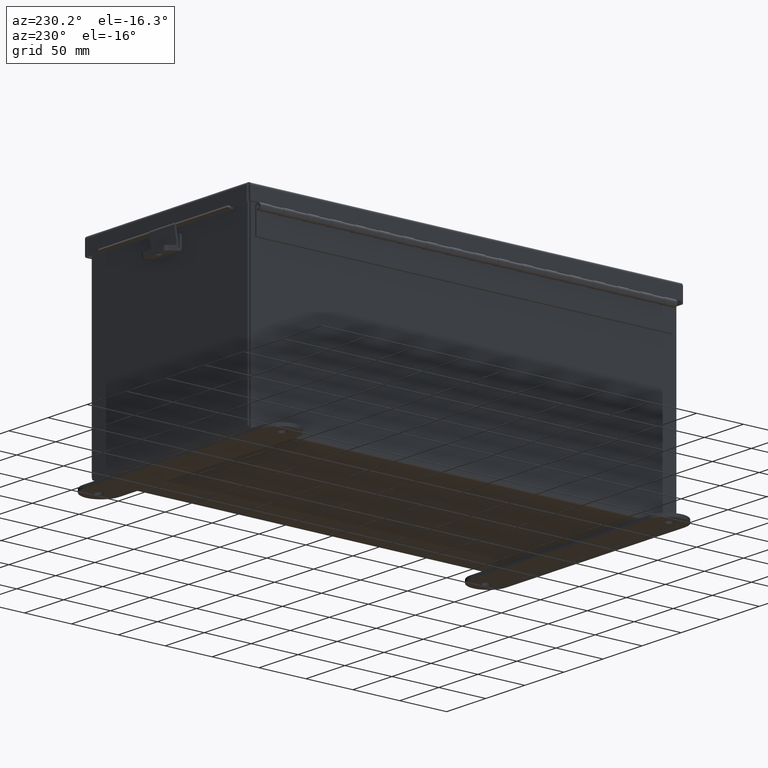
[diagram: clean part render]
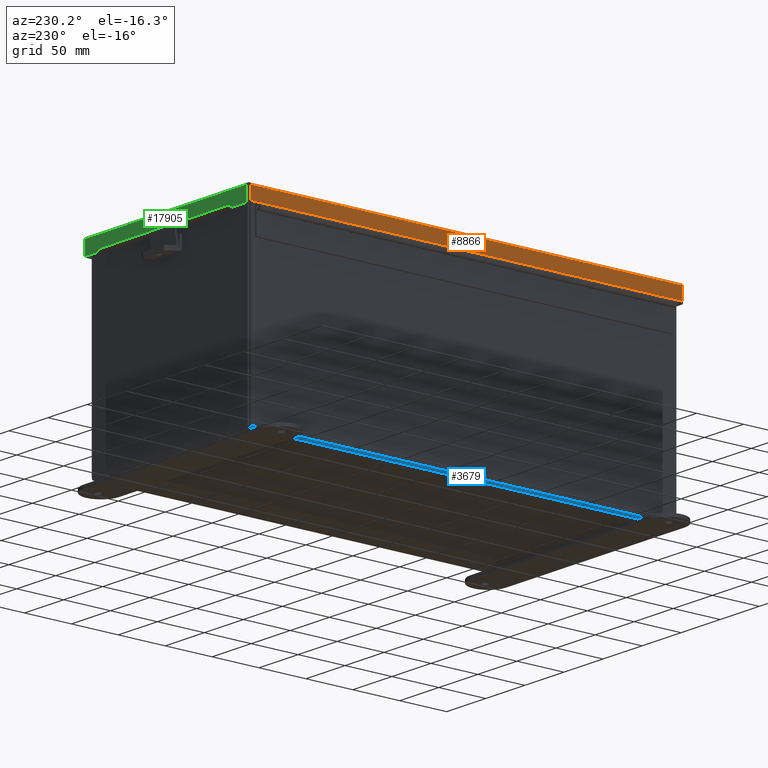
[diagram: same view with three faces highlighted in distinct colors, each labeled with its STEP entity id]
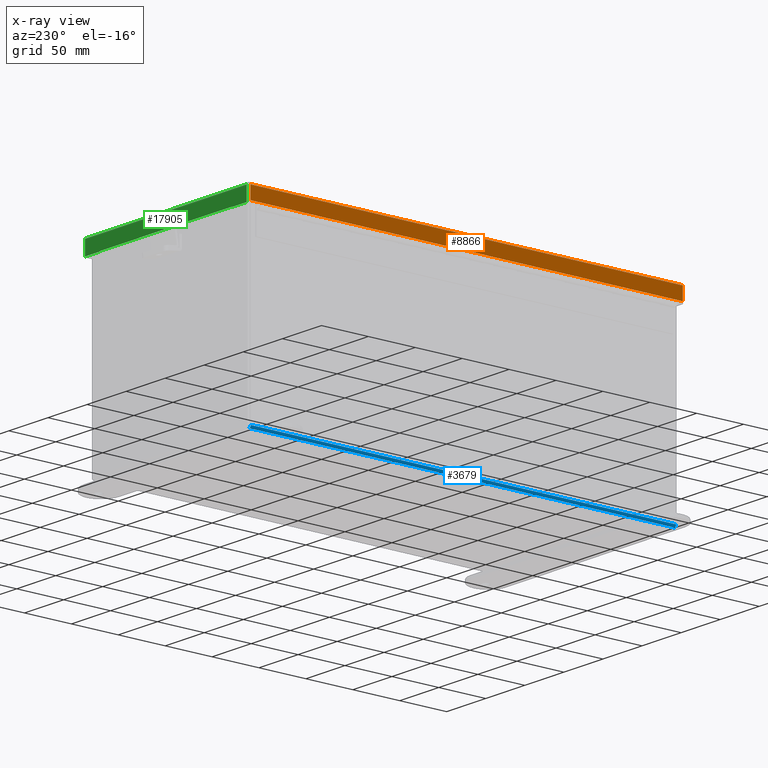
[diagram: x-ray of the same camera — body ghosted, the three highlighted faces saturated]
A machine part, auxiliary view with three faces highlighted in distinct colors.
The next image is the same camera in x-ray (body ghosted, the three faces saturated) — at least one of them is partly hidden behind the body in this view.
Their STEP definitions:

[orange] entity #8866 — the highlighted planar face has unit normal (1, -0, -0).
#25 = ORIENTED_EDGE ( 'NONE', *, *, #1395, .F. ) ;
#243 = VERTEX_POINT ( 'NONE', #1800 ) ;
#1395 = EDGE_CURVE ( 'NONE', #11590, #16019, #12266, .T. ) ;
#1642 = CARTESIAN_POINT ( 'NONE',  ( 4.156250000000004400, 9.074478932188133800, 0.01299999999999901400 ) ) ;
#1800 = CARTESIAN_POINT ( 'NONE',  ( 4.156250000000001800, -9.074478932188133800, 0.5502999999999999000 ) ) ;
#2384 = LINE ( 'NONE', #5585, #10806 ) ;
#2604 = VECTOR ( 'NONE', #16574, 39.37007874015748100 ) ;
#3044 = DIRECTION ( 'NONE',  ( -1.000000000000000000, -9.392141086557407100E-033, 3.971430846686188400E-015 ) ) ;
#3355 = CARTESIAN_POINT ( 'NONE',  ( 4.156250000000007100, 9.074478932188133800, 0.5502999999999999000 ) ) ;
#4749 = ORIENTED_EDGE ( 'NONE', *, *, #15723, .T. ) ;
#5013 = EDGE_CURVE ( 'NONE', #8392, #243, #11218, .T. ) ;
#5585 = CARTESIAN_POINT ( 'NONE',  ( 4.156250000000000000, 9.074478932188133800, -1.748382715945128500E-014 ) ) ;
#6026 = CARTESIAN_POINT ( 'NONE',  ( 4.156250000000004400, -9.156250000000000000, 0.01299999999999901400 ) ) ;
#7591 = DIRECTION ( 'NONE',  ( -1.049351150792752600E-032, -1.000000000000000000, 0.0000000000000000000 ) ) ;
#7766 = ORIENTED_EDGE ( 'NONE', *, *, #15946, .F. ) ;
#8319 = VECTOR ( 'NONE', #14990, 39.37007874015748100 ) ;
#8392 = VERTEX_POINT ( 'NONE', #3355 ) ;
#8866 = ADVANCED_FACE ( 'NONE', ( #11267 ), #11986, .F. ) ;
#8966 = EDGE_LOOP ( 'NONE', ( #25, #4749, #18591, #7766 ) ) ;
#9100 = CARTESIAN_POINT ( 'NONE',  ( 4.156250000000007100, -4.802076551362963100E-018, 0.5502999999999999000 ) ) ;
#9813 = VECTOR ( 'NONE', #7591, 39.37007874015748100 ) ;
#10506 = CARTESIAN_POINT ( 'NONE',  ( 4.156250000000000000, 0.0000000000000000000, -1.748382715945128500E-014 ) ) ;
#10806 = VECTOR ( 'NONE', #15970, 39.37007874015748100 ) ;
#11218 = LINE ( 'NONE', #9100, #9813 ) ;
#11267 = FACE_OUTER_BOUND ( 'NONE', #8966, .T. ) ;
#11590 = VERTEX_POINT ( 'NONE', #1642 ) ;
#11986 = PLANE ( 'NONE',  #16769 ) ;
#12186 = CARTESIAN_POINT ( 'NONE',  ( 4.156249999999994700, -9.074478932188133800, -1.092739197465705300E-015 ) ) ;
#12266 = LINE ( 'NONE', #6026, #8319 ) ;
#13468 = DIRECTION ( 'NONE',  ( 3.971430846686188400E-015, 2.218671295934095700E-031, 1.000000000000000000 ) ) ;
#14990 = DIRECTION ( 'NONE',  ( -1.049351150792752600E-032, -1.000000000000000000, -0.0000000000000000000 ) ) ;
#15252 = CARTESIAN_POINT ( 'NONE',  ( 4.156250000000000000, -9.074478932188133800, 0.01299999999999901400 ) ) ;
#15403 = LINE ( 'NONE', #12186, #2604 ) ;
#15723 = EDGE_CURVE ( 'NONE', #11590, #8392, #2384, .T. ) ;
#15946 = EDGE_CURVE ( 'NONE', #16019, #243, #15403, .T. ) ;
#15970 = DIRECTION ( 'NONE',  ( 3.971430846686188400E-015, 2.218671295934095700E-031, 1.000000000000000000 ) ) ;
#16019 = VERTEX_POINT ( 'NONE', #15252 ) ;
#16574 = DIRECTION ( 'NONE',  ( 3.971430846686188400E-015, 2.218671295934095700E-031, 1.000000000000000000 ) ) ;
#16769 = AXIS2_PLACEMENT_3D ( 'NONE', #10506, #3044, #13468 ) ;
#18591 = ORIENTED_EDGE ( 'NONE', *, *, #5013, .T. ) ;

[blue] entity #3679 — the highlighted cylindrical surface (edge-blend (fillet) strip) has radius 2.2276 mm, axis along (0, -1, 0).
#606 = VECTOR ( 'NONE', #9654, 39.37007874015748100 ) ;
#1069 = VERTEX_POINT ( 'NONE', #17370 ) ;
#1246 = FACE_OUTER_BOUND ( 'NONE', #18366, .T. ) ;
#1541 = CARTESIAN_POINT ( 'NONE',  ( -3.912299999999999200, 8.925299999999996500, 0.01300000000000042300 ) ) ;
#1632 = EDGE_CURVE ( 'NONE', #8863, #2555, #9010, .T. ) ;
#2555 = VERTEX_POINT ( 'NONE', #13899 ) ;
#3043 = DIRECTION ( 'NONE',  ( 0.0000000000000000000, 0.0000000000000000000, -1.000000000000000000 ) ) ;
#3679 = ADVANCED_FACE ( 'NONE', ( #1246 ), #8736, .T. ) ;
#3977 = CARTESIAN_POINT ( 'NONE',  ( -3.912299999999999200, -8.925299999999996500, 0.01300000000000042300 ) ) ;
#4710 = EDGE_CURVE ( 'NONE', #8863, #5786, #10994, .T. ) ;
#4841 = ORIENTED_EDGE ( 'NONE', *, *, #4710, .F. ) ;
#5465 = DIRECTION ( 'NONE',  ( 0.0000000000000000000, 0.0000000000000000000, -1.000000000000000000 ) ) ;
#5786 = VERTEX_POINT ( 'NONE', #18149 ) ;
#6320 = DIRECTION ( 'NONE',  ( 0.0000000000000000000, -1.000000000000000000, 0.0000000000000000000 ) ) ;
#6808 = CARTESIAN_POINT ( 'NONE',  ( -3.999999999999999600, 8.925299999999996500, 0.01299999999999984300 ) ) ;
#8736 = CYLINDRICAL_SURFACE ( 'NONE', #14661, 0.08770000000000026400 ) ;
#8767 = AXIS2_PLACEMENT_3D ( 'NONE', #1541, #11984, #3043 ) ;
#8863 = VERTEX_POINT ( 'NONE', #8995 ) ;
#8995 = CARTESIAN_POINT ( 'NONE',  ( -3.999999999999999600, -8.925299999999998200, 0.01300000000000039000 ) ) ;
#9009 = ORIENTED_EDGE ( 'NONE', *, *, #13944, .F. ) ;
#9010 = LINE ( 'NONE', #6808, #12491 ) ;
#9404 = CARTESIAN_POINT ( 'NONE',  ( -3.912299999999999200, -8.925299999999998200, 0.01300000000000042300 ) ) ;
#9654 = DIRECTION ( 'NONE',  ( -0.0000000000000000000, 1.000000000000000000, -0.0000000000000000000 ) ) ;
#9851 = ORIENTED_EDGE ( 'NONE', *, *, #13692, .F. ) ;
#10994 = CIRCLE ( 'NONE', #14444, 0.08770000000000009700 ) ;
#11310 = DIRECTION ( 'NONE',  ( 1.065092651769884500E-031, 1.000000000000000000, -3.060791226809479400E-017 ) ) ;
#11503 = ORIENTED_EDGE ( 'NONE', *, *, #1632, .T. ) ;
#11984 = DIRECTION ( 'NONE',  ( -0.0000000000000000000, 1.000000000000000000, -0.0000000000000000000 ) ) ;
#12491 = VECTOR ( 'NONE', #11310, 39.37007874015748100 ) ;
#13692 = EDGE_CURVE ( 'NONE', #5786, #1069, #16411, .T. ) ;
#13899 = CARTESIAN_POINT ( 'NONE',  ( -3.999999999999999600, 8.925299999999996500, 0.01300000000000011600 ) ) ;
#13944 = EDGE_CURVE ( 'NONE', #1069, #2555, #16643, .T. ) ;
#14389 = DIRECTION ( 'NONE',  ( 0.0000000000000000000, -1.000000000000000000, 0.0000000000000000000 ) ) ;
#14444 = AXIS2_PLACEMENT_3D ( 'NONE', #3977, #14389, #5465 ) ;
#14661 = AXIS2_PLACEMENT_3D ( 'NONE', #9404, #6320, #16763 ) ;
#16411 = LINE ( 'NONE', #17025, #606 ) ;
#16643 = CIRCLE ( 'NONE', #8767, 0.08770000000000009700 ) ;
#16763 = DIRECTION ( 'NONE',  ( -1.000000000000000000, 0.0000000000000000000, -3.480030137311043200E-015 ) ) ;
#17025 = CARTESIAN_POINT ( 'NONE',  ( -3.912299999999999200, -8.925299999999998200, -0.07469999999999966900 ) ) ;
#17370 = CARTESIAN_POINT ( 'NONE',  ( -3.912299999999999200, 8.925299999999998200, -0.07470000000000000300 ) ) ;
#18149 = CARTESIAN_POINT ( 'NONE',  ( -3.912299999999999200, -8.925299999999996500, -0.07469999999999966900 ) ) ;
#18366 = EDGE_LOOP ( 'NONE', ( #9851, #4841, #11503, #9009 ) ) ;

[green] entity #17905 — the highlighted planar face has unit normal (-0, -1, -0).
#524 = PLANE ( 'NONE',  #9481 ) ;
#583 = CARTESIAN_POINT ( 'NONE',  ( 4.074478932188134700, 9.156250000000000000, 0.0000000000000000000 ) ) ;
#718 = CARTESIAN_POINT ( 'NONE',  ( 3.324478932188134700, 9.156250000000001800, 0.6122999999999994000 ) ) ;
#983 = LINE ( 'NONE', #718, #8472 ) ;
#1643 = VECTOR ( 'NONE', #16132, 39.37007874015748100 ) ;
#1886 = CARTESIAN_POINT ( 'NONE',  ( 4.074478932188139200, 9.156250000000000000, 0.01300000000000010700 ) ) ;
#1972 = EDGE_CURVE ( 'NONE', #9366, #17882, #15236, .T. ) ;
#2009 = DIRECTION ( 'NONE',  ( 0.0000000000000000000, -3.569293475308526100E-015, -1.000000000000000000 ) ) ;
#2317 = VECTOR ( 'NONE', #17688, 39.37007874015748100 ) ;
#2336 = VECTOR ( 'NONE', #12330, 39.37007874015748100 ) ;
#2787 = EDGE_CURVE ( 'NONE', #17882, #14489, #14510, .T. ) ;
#3294 = LINE ( 'NONE', #4824, #8208 ) ;
#3627 = DIRECTION ( 'NONE',  ( -1.401985044024192400E-013, 0.0000000000000000000, -1.000000000000000000 ) ) ;
#3675 = CARTESIAN_POINT ( 'NONE',  ( 3.324478932188134700, 9.156250000000001800, 0.6122999999999994000 ) ) ;
#4455 = EDGE_CURVE ( 'NONE', #12542, #10968, #3294, .T. ) ;
#4824 = CARTESIAN_POINT ( 'NONE',  ( 3.324478932188134700, 9.156250000000001800, 0.5967115427318804300 ) ) ;
#6453 = CARTESIAN_POINT ( 'NONE',  ( -4.074478932188135600, 9.156250000000000000, -3.278217592397115700E-014 ) ) ;
#7103 = CARTESIAN_POINT ( 'NONE',  ( -4.074478932188135600, 9.156250000000001800, 0.6123000000000015100 ) ) ;
#7139 = CARTESIAN_POINT ( 'NONE',  ( 3.324478932188132500, 9.156250000000001800, 0.5967115427318804300 ) ) ;
#8160 = ORIENTED_EDGE ( 'NONE', *, *, #9802, .T. ) ;
#8208 = VECTOR ( 'NONE', #15238, 39.37007874015748100 ) ;
#8472 = VECTOR ( 'NONE', #3627, 39.37007874015748100 ) ;
#8530 = EDGE_CURVE ( 'NONE', #11260, #12542, #983, .T. ) ;
#9343 = LINE ( 'NONE', #16169, #2317 ) ;
#9366 = VERTEX_POINT ( 'NONE', #18959 ) ;
#9455 = CARTESIAN_POINT ( 'NONE',  ( 9.604153102725926100E-018, 9.156250000000000000, -3.278217592397115700E-014 ) ) ;
#9481 = AXIS2_PLACEMENT_3D ( 'NONE', #9455, #10952, #2009 ) ;
#9732 = CARTESIAN_POINT ( 'NONE',  ( 4.074478932188134700, 9.156250000000001800, 0.6123000000000005100 ) ) ;
#9802 = EDGE_CURVE ( 'NONE', #11260, #14489, #12158, .T. ) ;
#10053 = LINE ( 'NONE', #10206, #1643 ) ;
#10135 = VECTOR ( 'NONE', #11034, 39.37007874015748100 ) ;
#10206 = CARTESIAN_POINT ( 'NONE',  ( -4.268512490100411300E-018, 9.156250000000001800, 0.6122999999999994000 ) ) ;
#10279 = ORIENTED_EDGE ( 'NONE', *, *, #18467, .F. ) ;
#10952 = DIRECTION ( 'NONE',  ( -2.922740589197367200E-032, -1.000000000000000000, 3.569293475308526100E-015 ) ) ;
#10968 = VERTEX_POINT ( 'NONE', #11936 ) ;
#10995 = DIRECTION ( 'NONE',  ( 1.000000000000000000, 9.424794568731888400E-033, 8.216084191471489100E-018 ) ) ;
#11034 = DIRECTION ( 'NONE',  ( -0.0000000000000000000, 3.569293475308526100E-015, 1.000000000000000000 ) ) ;
#11260 = VERTEX_POINT ( 'NONE', #3675 ) ;
#11327 = VECTOR ( 'NONE', #12588, 39.37007874015748100 ) ;
#11694 = VECTOR ( 'NONE', #10995, 39.37007874015748100 ) ;
#11936 = CARTESIAN_POINT ( 'NONE',  ( -3.324478932188136100, 9.156250000000001800, 0.5967115427318793200 ) ) ;
#12157 = ORIENTED_EDGE ( 'NONE', *, *, #17222, .T. ) ;
#12158 = LINE ( 'NONE', #13948, #11694 ) ;
#12330 = DIRECTION ( 'NONE',  ( 0.0000000000000000000, 3.569293475308526100E-015, 1.000000000000000000 ) ) ;
#12542 = VERTEX_POINT ( 'NONE', #7139 ) ;
#12588 = DIRECTION ( 'NONE',  ( 1.000000000000000000, -1.415839178022909200E-032, -0.0000000000000000000 ) ) ;
#12668 = CARTESIAN_POINT ( 'NONE',  ( -3.324478932188136500, 9.156250000000001800, 0.6122999999999994000 ) ) ;
#12964 = ORIENTED_EDGE ( 'NONE', *, *, #17003, .T. ) ;
#13886 = EDGE_LOOP ( 'NONE', ( #14400, #8160, #15038, #14475, #12157, #12964, #10279, #18382 ) ) ;
#13948 = CARTESIAN_POINT ( 'NONE',  ( -4.268512490100411300E-018, 9.156250000000001800, 0.6122999999999994000 ) ) ;
#14204 = LINE ( 'NONE', #6453, #2336 ) ;
#14400 = ORIENTED_EDGE ( 'NONE', *, *, #8530, .F. ) ;
#14475 = ORIENTED_EDGE ( 'NONE', *, *, #1972, .F. ) ;
#14489 = VERTEX_POINT ( 'NONE', #9732 ) ;
#14510 = LINE ( 'NONE', #583, #10135 ) ;
#15038 = ORIENTED_EDGE ( 'NONE', *, *, #2787, .F. ) ;
#15236 = LINE ( 'NONE', #16974, #11327 ) ;
#15238 = DIRECTION ( 'NONE',  ( -1.000000000000000000, -1.049351150792752600E-032, -0.0000000000000000000 ) ) ;
#15742 = VERTEX_POINT ( 'NONE', #7103 ) ;
#16132 = DIRECTION ( 'NONE',  ( 1.000000000000000000, 9.424794568731888400E-033, 8.216084191471489100E-018 ) ) ;
#16169 = CARTESIAN_POINT ( 'NONE',  ( -3.324478932188136100, 9.156250000000001800, 0.5967115427318793200 ) ) ;
#16732 = VERTEX_POINT ( 'NONE', #12668 ) ;
#16974 = CARTESIAN_POINT ( 'NONE',  ( 4.156250000000004400, 9.156250000000000000, 0.01299999999999901400 ) ) ;
#17003 = EDGE_CURVE ( 'NONE', #15742, #16732, #10053, .T. ) ;
#17222 = EDGE_CURVE ( 'NONE', #9366, #15742, #14204, .T. ) ;
#17688 = DIRECTION ( 'NONE',  ( 0.0000000000000000000, 0.0000000000000000000, 1.000000000000000000 ) ) ;
#17882 = VERTEX_POINT ( 'NONE', #1886 ) ;
#17895 = FACE_OUTER_BOUND ( 'NONE', #13886, .T. ) ;
#17905 = ADVANCED_FACE ( 'NONE', ( #17895 ), #524, .F. ) ;
#18382 = ORIENTED_EDGE ( 'NONE', *, *, #4455, .F. ) ;
#18467 = EDGE_CURVE ( 'NONE', #10968, #16732, #9343, .T. ) ;
#18959 = CARTESIAN_POINT ( 'NONE',  ( -4.074478932188131200, 9.156250000000000000, 0.01300000000000010700 ) ) ;